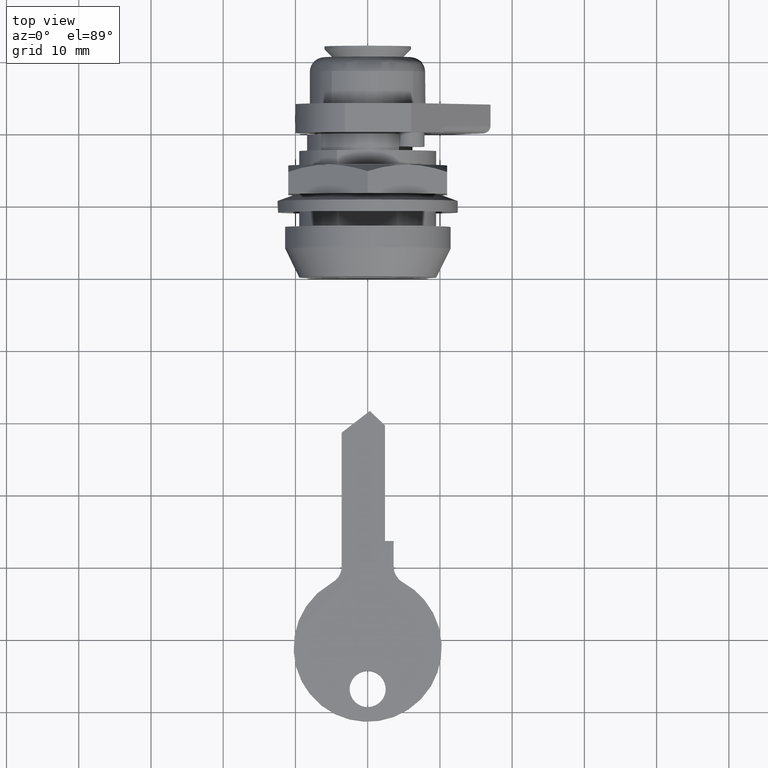
[diagram: clean part render]
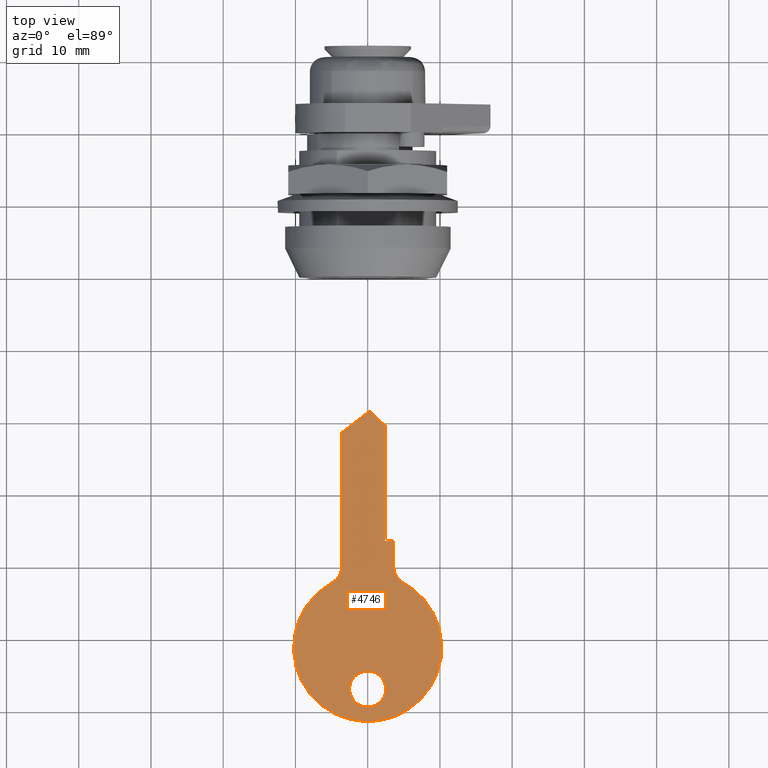
[diagram: same view with one face highlighted and labeled with its STEP entity id]
A machine part, top view. The second image highlights one B-rep face of the part: STEP entity #4746.
In plain terms, the highlighted face is a freeform B-spline surface patch.
Its self-contained STEP definition (entity closure, byte-faithful):
#4403=CARTESIAN_POINT('',(-76.789652260392700,2.492293334310164,0.900000000000012));
#4404=VERTEX_POINT('',#4403);
#4410=CARTESIAN_POINT('',(-79.485799999999998,-1.421085E-014,0.900000000000012));
#4411=VERTEX_POINT('',#4410);
#4412=CARTESIAN_POINT('',(-76.789652260392700,2.492293334310164,0.900000000000012));
#4413=CARTESIAN_POINT('',(-76.887574732191808,2.499999999999986,0.900000000000012));
#4414=CARTESIAN_POINT('',(-76.985799999999998,2.499999999999986,0.900000000000012));
#4415=CARTESIAN_POINT('',(-79.485799999999998,2.499999999999986,0.900000000000012));
#4416=CARTESIAN_POINT('',(-79.485799999999998,-1.421085E-014,0.900000000000012));
#4424=(BOUNDED_CURVE()B_SPLINE_CURVE(2,(#4412,#4413,#4414,#4415,#4416),.UNSPECIFIED.,.F.,.U.)B_SPLINE_CURVE_WITH_KNOTS((3,2,3),(0.736331300593192,0.750000000000000,1.0),.UNSPECIFIED.)CURVE()GEOMETRIC_REPRESENTATION_ITEM()RATIONAL_B_SPLINE_CURVE((0.969723356089226,0.983986122534986,1.0,0.707106781186548,1.0))REPRESENTATION_ITEM(''));
#4425=EDGE_CURVE('',#4404,#4411,#4424,.T.);
#4427=CARTESIAN_POINT('',(-77.181947739607295,-2.492293334310192,0.900000000000012));
#4428=VERTEX_POINT('',#4427);
#4429=CARTESIAN_POINT('',(-79.485799999999998,-1.421085E-014,0.900000000000012));
#4430=CARTESIAN_POINT('',(-79.485800000000012,-2.310976228610373,0.900000000000012));
#4431=CARTESIAN_POINT('',(-77.181947739607295,-2.492293334310193,0.900000000000012));
#4439=(BOUNDED_CURVE()B_SPLINE_CURVE(2,(#4429,#4430,#4431),.UNSPECIFIED.,.F.,.U.)B_SPLINE_CURVE_WITH_KNOTS((3,3),(0.0,0.236331300593192),.UNSPECIFIED.)CURVE()GEOMETRIC_REPRESENTATION_ITEM()RATIONAL_B_SPLINE_CURVE((1.0,0.723120658651562,0.969723356089226))REPRESENTATION_ITEM(''));
#4440=EDGE_CURVE('',#4411,#4428,#4439,.T.);
#4486=CARTESIAN_POINT('',(-74.485799999999998,-1.421085E-014,0.900000000000012));
#4487=VERTEX_POINT('',#4486);
#4488=CARTESIAN_POINT('',(-77.181947739607295,-2.492293334310193,0.900000000000012));
#4489=CARTESIAN_POINT('',(-77.084025267808187,-2.500000000000014,0.900000000000012));
#4490=CARTESIAN_POINT('',(-76.985799999999998,-2.500000000000014,0.900000000000012));
#4491=CARTESIAN_POINT('',(-74.485800000000012,-2.500000000000014,0.900000000000012));
#4492=CARTESIAN_POINT('',(-74.485799999999998,-1.421085E-014,0.900000000000012));
#4500=(BOUNDED_CURVE()B_SPLINE_CURVE(2,(#4488,#4489,#4490,#4491,#4492),.UNSPECIFIED.,.F.,.U.)B_SPLINE_CURVE_WITH_KNOTS((3,2,3),(0.236331300593192,0.250000000000000,0.500000000000000),.UNSPECIFIED.)CURVE()GEOMETRIC_REPRESENTATION_ITEM()RATIONAL_B_SPLINE_CURVE((0.969723356089226,0.983986122534986,1.0,0.707106781186548,1.0))REPRESENTATION_ITEM(''));
#4501=EDGE_CURVE('',#4428,#4487,#4500,.T.);
#4503=CARTESIAN_POINT('',(-74.485799999999998,-1.421085E-014,0.900000000000012));
#4504=CARTESIAN_POINT('',(-74.485799999999998,2.310976228610331,0.900000000000012));
#4505=CARTESIAN_POINT('',(-76.789652260392700,2.492293334310164,0.900000000000012));
#4513=(BOUNDED_CURVE()B_SPLINE_CURVE(2,(#4503,#4504,#4505),.UNSPECIFIED.,.F.,.U.)B_SPLINE_CURVE_WITH_KNOTS((3,3),(0.500000000000000,0.736331300593191),.UNSPECIFIED.)CURVE()GEOMETRIC_REPRESENTATION_ITEM()RATIONAL_B_SPLINE_CURVE((1.0,0.723120658651563,0.969723356089224))REPRESENTATION_ITEM(''));
#4514=EDGE_CURVE('',#4487,#4404,#4513,.T.);
#4640=CARTESIAN_POINT('',(-83.633643747549314,11.272741414003420,0.900000000000017));
#4641=CARTESIAN_POINT('',(-36.337952445396780,11.272741414003420,0.900000000000017));
#4642=CARTESIAN_POINT('',(-83.633643747549314,-11.272741264100199,0.900000000000017));
#4643=CARTESIAN_POINT('',(-36.337952445396780,-11.272741264100199,0.900000000000017));
#4644=B_SPLINE_SURFACE_WITH_KNOTS('',1,1,((#4640,#4642),(#4641,#4643)),.UNSPECIFIED.,.F.,.F.,.U.,(2,2),(2,2),(0.0,47.295691302152527),(0.0,22.545482678103621),.UNSPECIFIED.);
#4645=CARTESIAN_POINT('',(-62.235012418782397,4.903921664797701,0.900000000000012));
#4646=VERTEX_POINT('',#4645);
#4647=CARTESIAN_POINT('',(-62.235012418782397,-4.903921664797980,0.900000000000012));
#4648=VERTEX_POINT('',#4647);
#4649=CARTESIAN_POINT('',(-62.235012418782397,4.903921664797701,0.900000000000012));
#4650=CARTESIAN_POINT('',(-66.046324682182799,11.899309194277926,0.900000000000012));
#4651=CARTESIAN_POINT('',(-73.766059668664653,9.932792967462282,0.900000000000012));
#4652=CARTESIAN_POINT('',(-81.485794655146577,7.966276740646615,0.900000000000012));
#4653=CARTESIAN_POINT('',(-81.485794655146492,-2.531317E-014,0.900000000000012));
#4654=CARTESIAN_POINT('',(-81.485794655146364,-7.966276740646457,0.900000000000012));
#4655=CARTESIAN_POINT('',(-73.766059668664624,-9.932792967462268,0.900000000000012));
#4656=CARTESIAN_POINT('',(-66.046324682182799,-11.899309194278104,0.900000000000012));
#4657=CARTESIAN_POINT('',(-62.235012418782397,-4.903921664797980,0.900000000000012));
#4665=(BOUNDED_CURVE()B_SPLINE_CURVE(2,(#4649,#4650,#4651,#4652,#4653,#4654,#4655,#4656,#4657),.UNSPECIFIED.,.F.,.U.)B_SPLINE_CURVE_WITH_KNOTS((3,2,2,2,3),(0.0,0.250000000000000,0.500000000000000,0.750000000000000,1.0),.UNSPECIFIED.)CURVE()GEOMETRIC_REPRESENTATION_ITEM()RATIONAL_B_SPLINE_CURVE((1.0,0.789574291396973,1.0,0.789574291396973,1.0,0.789574291396973,1.0,0.789574291396973,1.0))REPRESENTATION_ITEM(''));
#4666=EDGE_CURVE('',#4646,#4648,#4665,.T.);
#4667=ORIENTED_EDGE('',*,*,#4666,.T.);
#4668=CARTESIAN_POINT('',(-60.039700000000003,-3.600000000000195,0.900000000000012));
#4669=VERTEX_POINT('',#4668);
#4670=CARTESIAN_POINT('',(-60.039700000000003,-3.600000000000190,0.900000000000012));
#4671=CARTESIAN_POINT('',(-61.524593053993037,-3.600000000000190,0.900000000000012));
#4672=CARTESIAN_POINT('',(-62.235012418782340,-4.903921664798008,0.900000000000012));
#4680=(BOUNDED_CURVE()B_SPLINE_CURVE(2,(#4670,#4671,#4672),.UNSPECIFIED.,.F.,.U.)CURVE()GEOMETRIC_REPRESENTATION_ITEM()QUASI_UNIFORM_CURVE()RATIONAL_B_SPLINE_CURVE((1.0,0.859776521568504,1.0))REPRESENTATION_ITEM(''));
#4681=EDGE_CURVE('',#4669,#4648,#4680,.T.);
#4682=ORIENTED_EDGE('',*,*,#4681,.F.);
#4683=CARTESIAN_POINT('',(-56.485800000000012,-3.600000000000210,0.900000000000012));
#4684=VERTEX_POINT('',#4683);
#4685=CARTESIAN_POINT('',(-56.485800000000012,-3.600000000000210,0.900000000000012));
#4686=CARTESIAN_POINT('',(-60.039700000000003,-3.600000000000195,0.900000000000012));
#4687=QUASI_UNIFORM_CURVE('',1,(#4685,#4686),.UNSPECIFIED.,.F.,.U.);
#4688=EDGE_CURVE('',#4684,#4669,#4687,.T.);
#4689=ORIENTED_EDGE('',*,*,#4688,.F.);
#4690=CARTESIAN_POINT('',(-56.485800000000012,-2.400000000000000,0.900000000000012));
#4691=VERTEX_POINT('',#4690);
#4692=CARTESIAN_POINT('',(-56.485800000000012,-2.400000000000000,0.900000000000012));
#4693=CARTESIAN_POINT('',(-56.485800000000012,-3.600000000000210,0.900000000000012));
#4694=QUASI_UNIFORM_CURVE('',1,(#4692,#4693),.UNSPECIFIED.,.F.,.U.);
#4695=EDGE_CURVE('',#4691,#4684,#4694,.T.);
#4696=ORIENTED_EDGE('',*,*,#4695,.F.);
#4697=CARTESIAN_POINT('',(-40.485800000000012,-2.399999999999975,0.900000000000012));
#4698=VERTEX_POINT('',#4697);
#4699=CARTESIAN_POINT('',(-40.485800000000012,-2.399999999999975,0.900000000000012));
#4700=CARTESIAN_POINT('',(-56.485800000000012,-2.400000000000000,0.900000000000012));
#4701=QUASI_UNIFORM_CURVE('',1,(#4699,#4700),.UNSPECIFIED.,.F.,.U.);
#4702=EDGE_CURVE('',#4698,#4691,#4701,.T.);
#4703=ORIENTED_EDGE('',*,*,#4702,.F.);
#4704=CARTESIAN_POINT('',(-38.485799999999998,-0.300000000000097,0.900000000000012));
#4705=VERTEX_POINT('',#4704);
#4706=CARTESIAN_POINT('',(-38.485799999999998,-0.300000000000097,0.900000000000012));
#4707=CARTESIAN_POINT('',(-40.485800000000012,-2.399999999999975,0.900000000000012));
#4708=QUASI_UNIFORM_CURVE('',1,(#4706,#4707),.UNSPECIFIED.,.F.,.U.);
#4709=EDGE_CURVE('',#4705,#4698,#4708,.T.);
#4710=ORIENTED_EDGE('',*,*,#4709,.F.);
#4711=CARTESIAN_POINT('',(-41.485800000000012,3.599999999999910,0.900000000000012));
#4712=VERTEX_POINT('',#4711);
#4713=CARTESIAN_POINT('',(-41.485800000000012,3.599999999999910,0.900000000000012));
#4714=CARTESIAN_POINT('',(-38.485799999999998,-0.300000000000097,0.900000000000012));
#4715=QUASI_UNIFORM_CURVE('',1,(#4713,#4714),.UNSPECIFIED.,.F.,.U.);
#4716=EDGE_CURVE('',#4712,#4705,#4715,.T.);
#4717=ORIENTED_EDGE('',*,*,#4716,.F.);
#4718=CARTESIAN_POINT('',(-60.039700000000003,3.599999999999905,0.900000000000012));
#4719=VERTEX_POINT('',#4718);
#4720=CARTESIAN_POINT('',(-60.039700000000003,3.599999999999905,0.900000000000012));
#4721=CARTESIAN_POINT('',(-41.485800000000012,3.599999999999910,0.900000000000012));
#4722=QUASI_UNIFORM_CURVE('',1,(#4720,#4721),.UNSPECIFIED.,.F.,.U.);
#4723=EDGE_CURVE('',#4719,#4712,#4722,.T.);
#4724=ORIENTED_EDGE('',*,*,#4723,.F.);
#4725=CARTESIAN_POINT('',(-62.235012418782340,4.903921664797730,0.900000000000012));
#4726=CARTESIAN_POINT('',(-61.524593053993037,3.599999999999910,0.900000000000012));
#4727=CARTESIAN_POINT('',(-60.039700000000003,3.599999999999910,0.900000000000012));
#4735=(BOUNDED_CURVE()B_SPLINE_CURVE(2,(#4725,#4726,#4727),.UNSPECIFIED.,.F.,.U.)CURVE()GEOMETRIC_REPRESENTATION_ITEM()QUASI_UNIFORM_CURVE()RATIONAL_B_SPLINE_CURVE((1.0,0.859776521568504,1.0))REPRESENTATION_ITEM(''));
#4736=EDGE_CURVE('',#4646,#4719,#4735,.T.);
#4737=ORIENTED_EDGE('',*,*,#4736,.F.);
#4738=EDGE_LOOP('',(#4667,#4682,#4689,#4696,#4703,#4710,#4717,#4724,#4737));
#4739=FACE_OUTER_BOUND('',#4738,.T.);
#4740=ORIENTED_EDGE('',*,*,#4514,.F.);
#4741=ORIENTED_EDGE('',*,*,#4501,.F.);
#4742=ORIENTED_EDGE('',*,*,#4440,.F.);
#4743=ORIENTED_EDGE('',*,*,#4425,.F.);
#4744=EDGE_LOOP('',(#4740,#4741,#4742,#4743));
#4745=FACE_BOUND('',#4744,.T.);
#4746=ADVANCED_FACE('',(#4739,#4745),#4644,.F.);